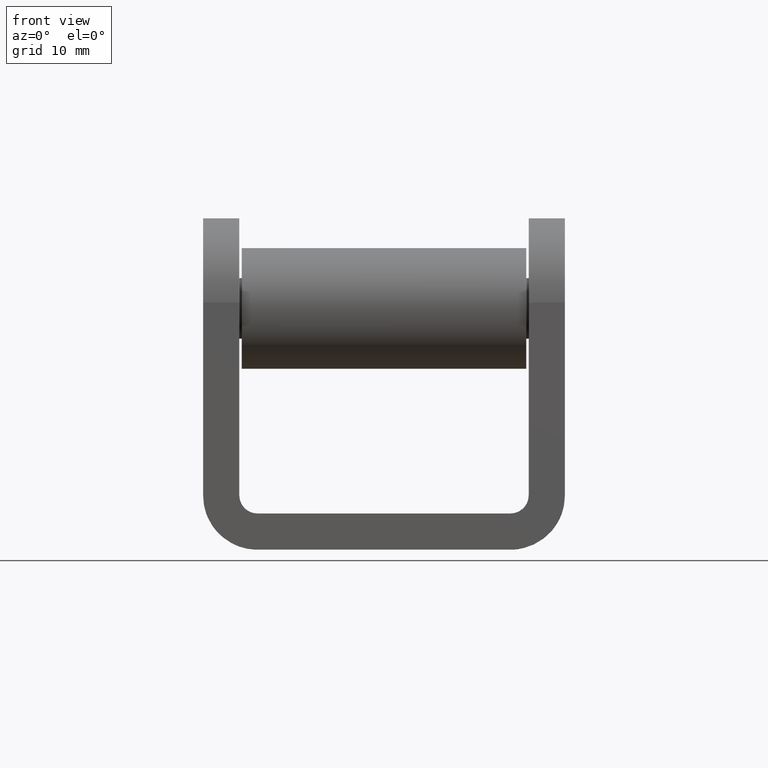
[diagram: clean part render]
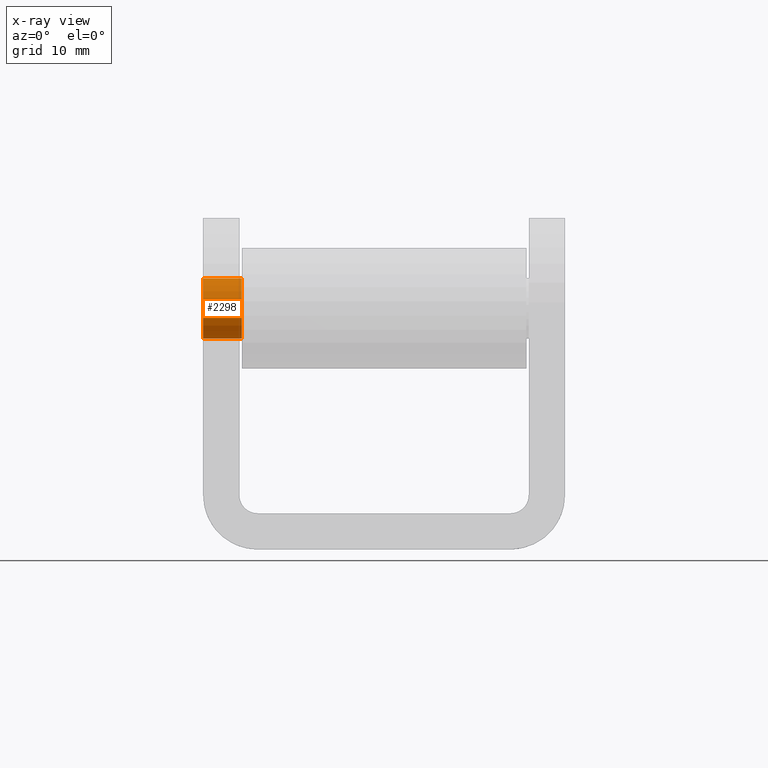
[diagram: x-ray — body ghosted, one internal face saturated and labeled with its STEP entity id]
A machine part, front view, then the same camera in x-ray: the body is ghosted and one INTERNAL B-rep face — a face not visible from any outside direction — is saturated and labeled: STEP entity #2298.
In plain terms, the highlighted cylindrical surface (bore or boss wall) has radius 2.5 mm, axis along (1, -0, -0).
Its self-contained STEP definition (entity closure, byte-faithful):
#156 = CARTESIAN_POINT ( 'NONE',  ( -11.80000000000000426, -15.00000000000000888, 3.750000000000011990 ) ) ;
#465 = DIRECTION ( 'NONE',  ( 1.000000000000000000, -0.000000000000000000, -0.000000000000000000 ) ) ;
#571 = CARTESIAN_POINT ( 'NONE',  ( -15.00000000000000355, -15.00000000000000888, 3.750000000000008438 ) ) ;
#1019 = EDGE_CURVE ( 'NONE', #2015, #2015, #5121, .T. ) ;
#1866 = AXIS2_PLACEMENT_3D ( 'NONE', #6082, #12226, #10804 ) ;
#2015 = VERTEX_POINT ( 'NONE', #156 ) ;
#2298 = ADVANCED_FACE ( 'NONE', ( #9651, #8121 ), #10403, .T. ) ;
#2303 = AXIS2_PLACEMENT_3D ( 'NONE', #2982, #465, #8984 ) ;
#2384 = CIRCLE ( 'NONE', #9324, 2.499999999999990230 ) ;
#2982 = CARTESIAN_POINT ( 'NONE',  ( 15.00000000000000000, -15.00000000000000888, 6.249999999999998224 ) ) ;
#4622 = DIRECTION ( 'NONE',  ( 1.000000000000000000, -0.000000000000000000, -0.000000000000000000 ) ) ;
#5058 = EDGE_CURVE ( 'NONE', #13418, #13418, #2384, .T. ) ;
#5121 = CIRCLE ( 'NONE', #1866, 2.499999999999986677 ) ;
#6082 = CARTESIAN_POINT ( 'NONE',  ( -11.80000000000000426, -15.00000000000000888, 6.249999999999998224 ) ) ;
#8121 = FACE_OUTER_BOUND ( 'NONE', #9351, .T. ) ;
#8984 = DIRECTION ( 'NONE',  ( 0.000000000000000000, 0.000000000000000000, -1.000000000000000000 ) ) ;
#9324 = AXIS2_PLACEMENT_3D ( 'NONE', #9449, #4622, #13087 ) ;
#9351 = EDGE_LOOP ( 'NONE', ( #13913 ) ) ;
#9449 = CARTESIAN_POINT ( 'NONE',  ( -15.00000000000000355, -15.00000000000000888, 6.249999999999998224 ) ) ;
#9651 = FACE_OUTER_BOUND ( 'NONE', #14466, .T. ) ;
#10403 = CYLINDRICAL_SURFACE ( 'NONE', #2303, 2.499999999999988454 ) ;
#10804 = DIRECTION ( 'NONE',  ( 0.000000000000000000, 0.000000000000000000, -1.000000000000000000 ) ) ;
#11956 = ORIENTED_EDGE ( 'NONE', *, *, #5058, .T. ) ;
#12226 = DIRECTION ( 'NONE',  ( 1.000000000000000000, -0.000000000000000000, -0.000000000000000000 ) ) ;
#13087 = DIRECTION ( 'NONE',  ( 0.000000000000000000, 0.000000000000000000, -1.000000000000000000 ) ) ;
#13418 = VERTEX_POINT ( 'NONE', #571 ) ;
#13913 = ORIENTED_EDGE ( 'NONE', *, *, #1019, .F. ) ;
#14466 = EDGE_LOOP ( 'NONE', ( #11956 ) ) ;